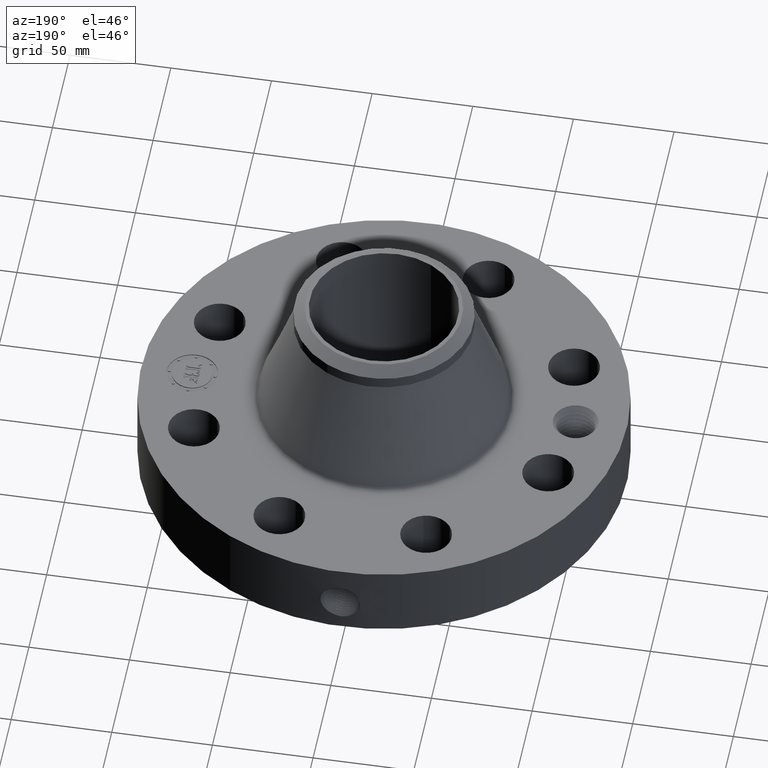
[diagram: clean part render]
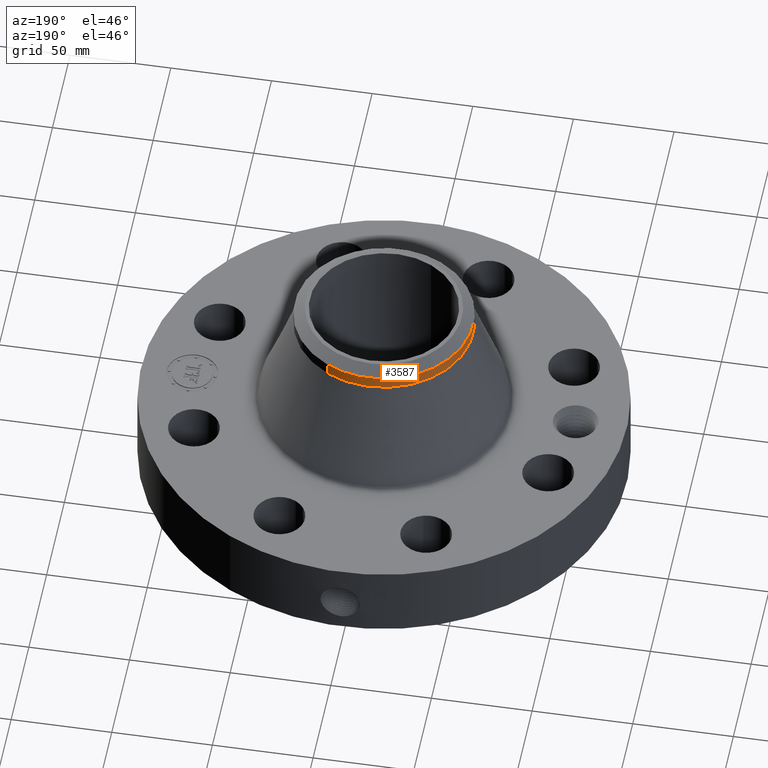
[diagram: same view with one face highlighted and labeled with its STEP entity id]
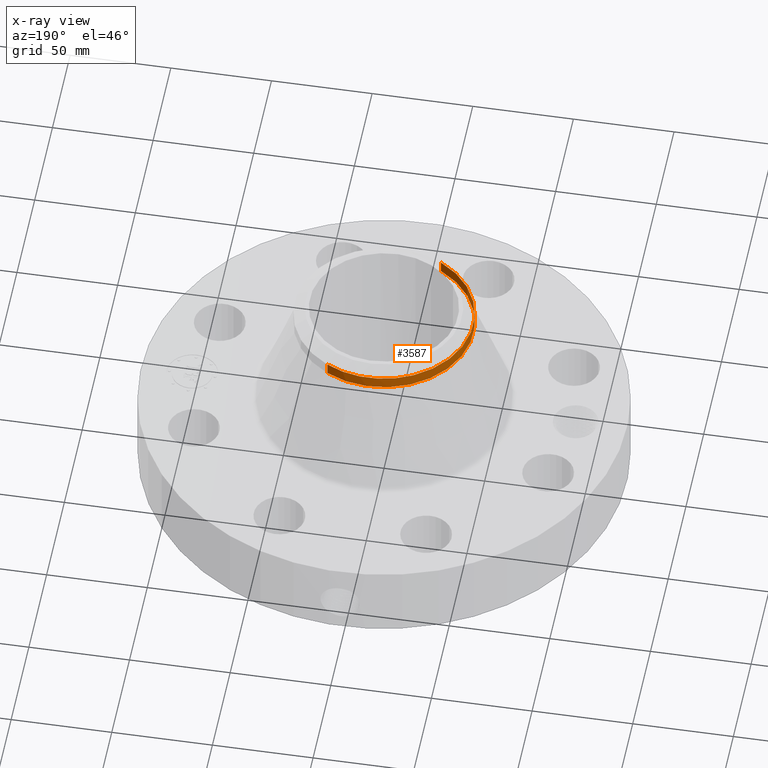
[diagram: x-ray of the same camera — body ghosted, the highlighted face saturated]
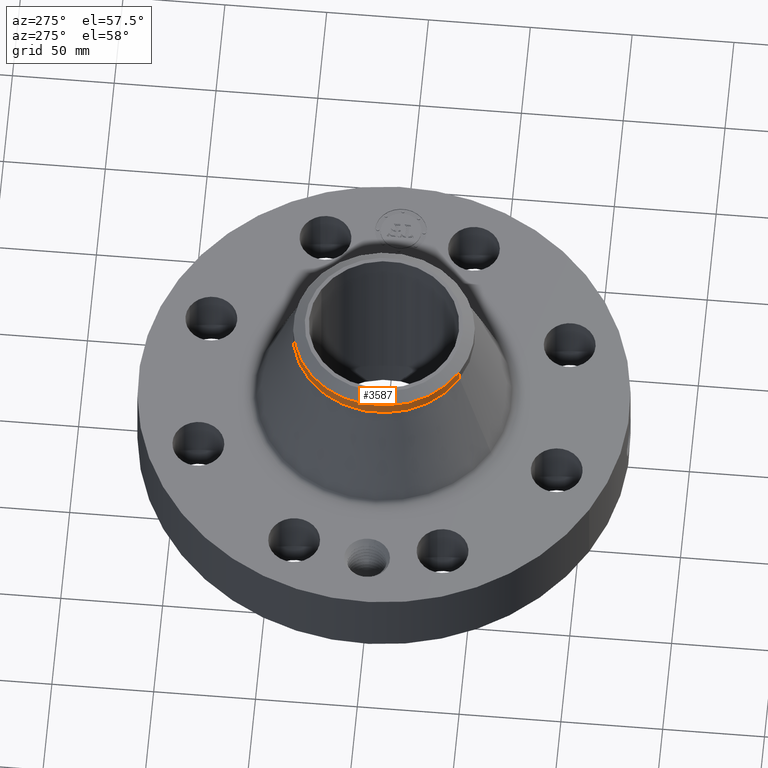
[diagram: same view with one face highlighted and labeled with its STEP entity id]
A machine part, auxiliary view. The second image highlights one B-rep face of the part: STEP entity #3587.
The next image is the same camera in x-ray: the body ghosted, the highlighted face saturated — about 0% of this face is hidden behind the body in this view.
A second angle (auxiliary view) of the same face is appended — the face is thin or edge-on in the first view.
In plain terms, the highlighted cylindrical surface (partial cylindrical patch) has radius 44.45 mm, axis along (0, 0, -1).
Its self-contained STEP definition (entity closure, byte-faithful):
#2603=AXIS2_PLACEMENT_3D('Circle Axis2P3D',#2601,#2602,$) ;
#3532=AXIS2_PLACEMENT_3D('Cylinder Axis2P3D',#3529,#3530,#3531) ;
#3570=AXIS2_PLACEMENT_3D('Circle Axis2P3D',#3568,#3569,$) ;
#3577=AXIS2_PLACEMENT_3D('Circle Axis2P3D',#3575,#3576,$) ;
#2579=CARTESIAN_POINT('Vertex',(0.838994692561,1.53576948331,3.84400087905)) ;
#2586=CARTESIAN_POINT('Vertex',(-0.838994692561,-1.53576948331,3.84400087905)) ;
#2601=CARTESIAN_POINT('Axis2P3D Location',(0.,0.,3.84400087905)) ;
#3529=CARTESIAN_POINT('Axis2P3D Location',(0.,0.,2.12500000001)) ;
#3534=CARTESIAN_POINT('Line Origine',(-0.838994692561,-1.53576948331,3.96211111527)) ;
#3538=CARTESIAN_POINT('Vertex',(-0.838994692561,-1.53576948331,4.08022135149)) ;
#3541=CARTESIAN_POINT('Line Origine',(0.838994692561,1.53576948331,3.96211111527)) ;
#3545=CARTESIAN_POINT('Vertex',(0.838994692561,1.53576948331,4.08022135149)) ;
#3568=CARTESIAN_POINT('Axis2P3D Location',(0.,0.,4.08022135149)) ;
#3572=CARTESIAN_POINT('Vertex',(-0.838994692561,1.53576948331,4.08022135149)) ;
#3575=CARTESIAN_POINT('Axis2P3D Location',(0.,0.,4.08022135149)) ;
#2602=DIRECTION('Axis2P3D Direction',(0.,0.,-0.0393700787402)) ;
#3530=DIRECTION('Axis2P3D Direction',(0.,0.,-0.0393700787402)) ;
#3531=DIRECTION('Axis2P3D XDirection',(-0.0188750212049,-0.0345504945626,0.)) ;
#3535=DIRECTION('Vector Direction',(0.,0.,-0.0393700787402)) ;
#3542=DIRECTION('Vector Direction',(0.,0.,-0.0393700787402)) ;
#3569=DIRECTION('Axis2P3D Direction',(0.,0.,-0.0393700787402)) ;
#3576=DIRECTION('Axis2P3D Direction',(0.,0.,-0.0393700787402)) ;
#3536=VECTOR('Line Direction',#3535,0.0393700787402) ;
#3543=VECTOR('Line Direction',#3542,0.0393700787402) ;
#3581=ORIENTED_EDGE('',*,*,#3547,.F.) ;
#3582=ORIENTED_EDGE('',*,*,#2605,.F.) ;
#3583=ORIENTED_EDGE('',*,*,#3540,.T.) ;
#3584=ORIENTED_EDGE('',*,*,#3574,.F.) ;
#3585=ORIENTED_EDGE('',*,*,#3579,.T.) ;
#3587=ADVANCED_FACE('PartBody',(#3586),#3533,.T.) ;
#2604=CIRCLE('generated circle',#2603,1.75000000001) ;
#3571=CIRCLE('generated circle',#3570,1.75000000001) ;
#3578=CIRCLE('generated circle',#3577,1.75000000001) ;
#3533=CYLINDRICAL_SURFACE('generated cylinder',#3532,1.75000000001) ;
#2605=EDGE_CURVE('',#2587,#2580,#2604,.T.) ;
#3540=EDGE_CURVE('',#2587,#3539,#3537,.F.) ;
#3547=EDGE_CURVE('',#2580,#3546,#3544,.F.) ;
#3574=EDGE_CURVE('',#3573,#3539,#3571,.F.) ;
#3579=EDGE_CURVE('',#3573,#3546,#3578,.T.) ;
#3580=EDGE_LOOP('',(#3581,#3582,#3583,#3584,#3585)) ;
#3586=FACE_OUTER_BOUND('',#3580,.T.) ;
#3537=LINE('Line',#3534,#3536) ;
#3544=LINE('Line',#3541,#3543) ;
#2580=VERTEX_POINT('',#2579) ;
#2587=VERTEX_POINT('',#2586) ;
#3539=VERTEX_POINT('',#3538) ;
#3546=VERTEX_POINT('',#3545) ;
#3573=VERTEX_POINT('',#3572) ;